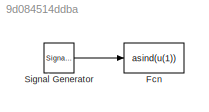
MODEL slx_9d084514ddba
KIND model
BLOCK [Fcn] Fcn
  Expr = asind(u(1))
BLOCK [SignalGenerator] Signal Generator
  Frequency = 60
  Ports = [0, 1]
LINE Signal Generator:1 -> Fcn:1
